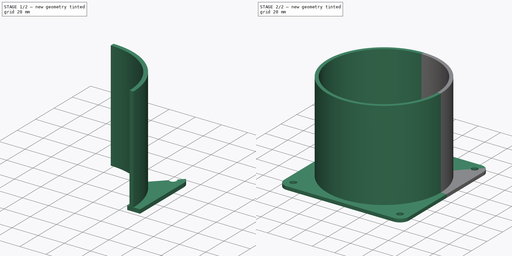
[diagram: build sequence overview — one tinted view per stage of 2, left to right]
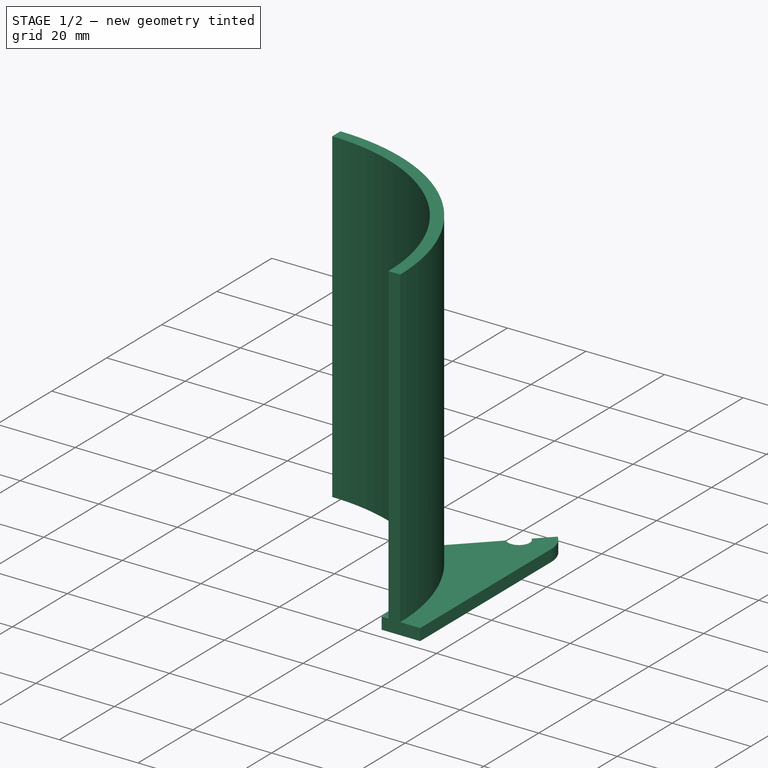
[diagram: stage 1 of 2 — iso view after this stage's code; geometry added in this stage tinted green]
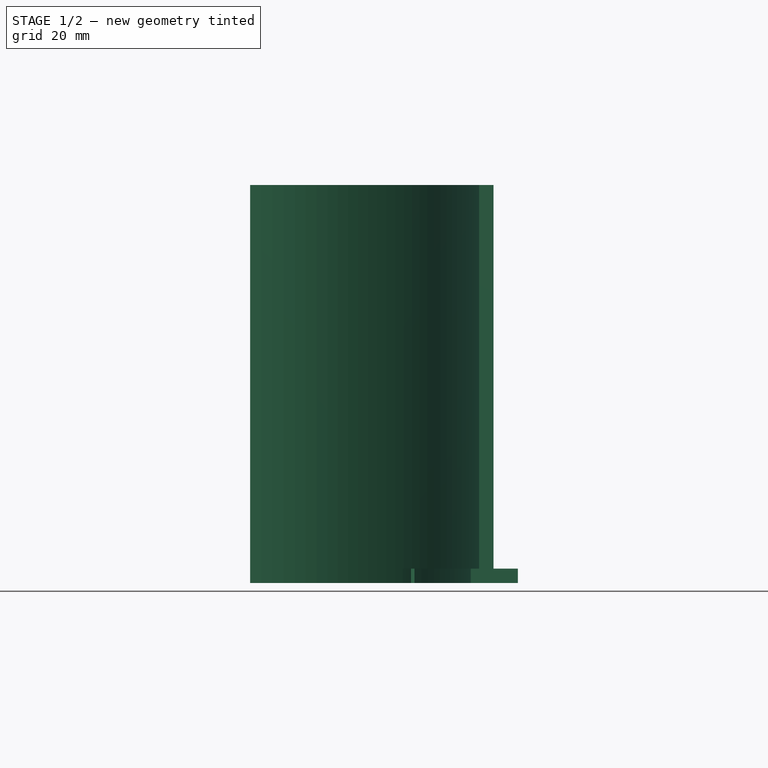
[diagram: stage 1 of 2 — front view after this stage's code; geometry added in this stage tinted green]
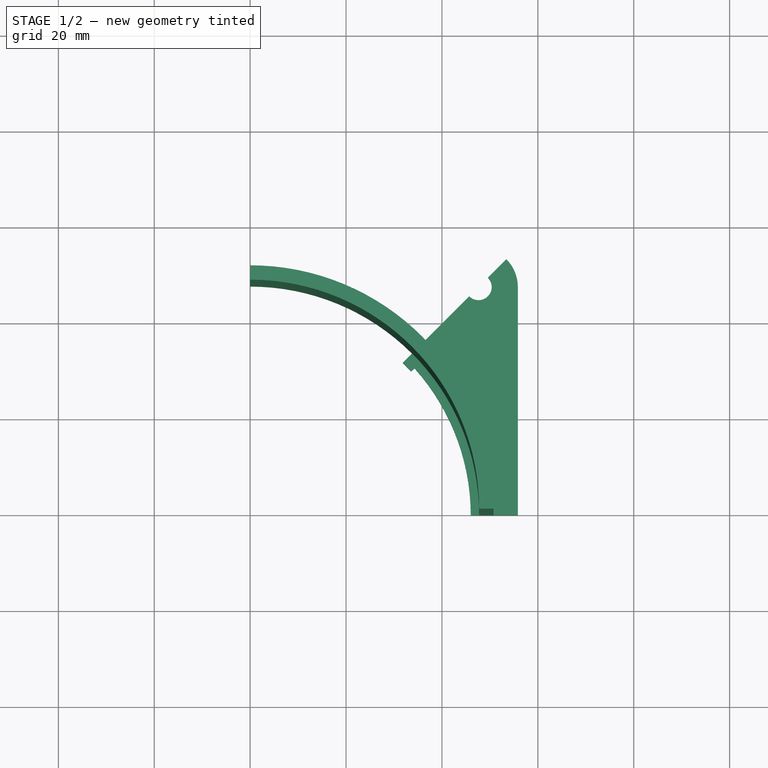
[diagram: stage 1 of 2 — top view after this stage's code; geometry added in this stage tinted green]
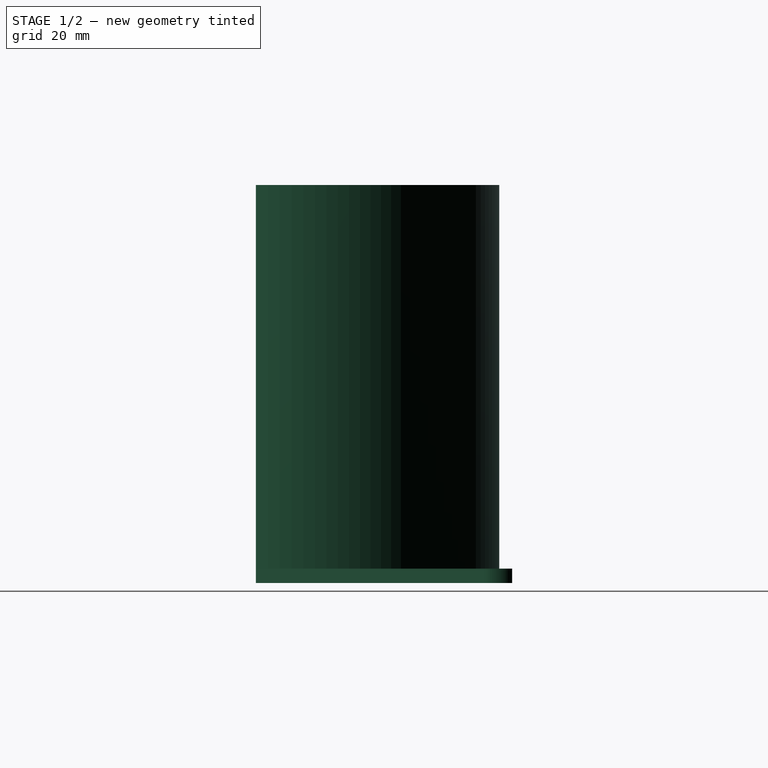
[diagram: stage 1 of 2 — right view after this stage's code; geometry added in this stage tinted green]
FCSTD DOCUMENT  (FreeCAD 0.20R29177 (Git))
Label: Фланец
License: All rights reserved
LicenseURL: http://en.wikipedia.org/wiki/All_rights_reserved
objects: Sketcher::SketchObject×3, PartDesign::Mirrored×3, PartDesign::Revolution×1, PartDesign::Pad×1, PartDesign::Plane×1, PartDesign::MultiTransform×1, PartDesign::Body×1
note: 13 computed .brp shape members not serialized (recipe doc carries the construction recipe); baked Part::Feature solids carry a one-line shape summary decoded from their .brp

FEATURE [Sketcher::SketchObject] Sketch
  FullyConstrained = true
  MapMode = 5
  Placement = pos=(0,0,0) rot=(1,0,0;1.5708rad)
  Support = -> [XZ_Plane]
  sketch-geometry (4):
    g0: LineSegment StartX=47.75 StartY=0 StartZ=0 EndX=50.75 EndY=0 EndZ=0
    g1: LineSegment StartX=50.75 StartY=0 StartZ=0 EndX=50.75 EndY=83 EndZ=0
    g2: LineSegment StartX=50.75 StartY=83 StartZ=0 EndX=47.75 EndY=83 EndZ=0
    g3: LineSegment StartX=47.75 StartY=83 StartZ=0 EndX=47.75 EndY=0 EndZ=0
  constraints (12):
    c: Coincident(g0,g1)
    c: Coincident(g1,g2)
    c: Coincident(g2,g3)
    c: Coincident(g3,g0)
    c: Horizontal(g0)
    c: Horizontal(g2)
    c: Vertical(g1)
    c: Vertical(g3)
    c: PointOnObject(g0,g-1)
    c: Distance(g0,g-1) = 47.75
    c: Distance(g0) = 3
    c: Distance(g3) = 83
FEATURE [PartDesign::Revolution] Revolution
  Angle = 90
  Axis = (0,-2e-16,1)
  Base = (0,0,0)
  Placement = pos=(0,0,0) rot=(1,0,0;1.5708rad)
  Profile = -> Sketch
  ReferenceAxis = -> Sketch [V_Axis]
FEATURE [Sketcher::SketchObject] Sketch001
  FullyConstrained = true
  MapMode = 5
  Support = -> [XY_Plane]
  sketch-geometry (9):
    g0: ArcOfCircle CenterX=0 CenterY=0 CenterZ=0 NormalX=0 NormalY=0 NormalZ=1 AngleXU=0 Radius=46 StartAngle=0 EndAngle=0.729835
    g1: LineSegment StartX=31.8198 StartY=31.8198 StartZ=0 EndX=45.6805 EndY=45.6805 EndZ=0
    g2: ArcOfCircle CenterX=47.625 CenterY=47.625 CenterZ=0 NormalX=0 NormalY=0 NormalZ=1 AngleXU=0 Radius=2.75 StartAngle=3.92699 EndAngle=7.06858
    g3: ArcOfCircle CenterX=47.625 CenterY=47.625 CenterZ=0 NormalX=0 NormalY=0 NormalZ=1 AngleXU=0 Radius=8.2 StartAngle=4.50422e-08 EndAngle=0.785398
    g4: LineSegment StartX=55.825 StartY=47.625 StartZ=0 EndX=55.825 EndY=0 EndZ=0
    g5: LineSegment StartX=46 StartY=0 StartZ=0 EndX=55.825 EndY=0 EndZ=0
    g6: LineSegment StartX=49.5695 StartY=49.5695 StartZ=0 EndX=53.4233 EndY=53.4233 EndZ=0
    g7: ArcOfCircle CenterX=0 CenterY=0 CenterZ=0 NormalX=0 NormalY=0 NormalZ=1 AngleXU=0 Radius=45 StartAngle=0.729835 EndAngle=0.785398
    g8: LineSegment StartX=33.5378 StartY=30.0036 StartZ=0 EndX=34.2831 EndY=30.6704 EndZ=0
  constraints (27):
    c: PointOnObject(g0,g-1)
    c: DistanceX(g2) = 47.625
    c: DistanceY(g2) = 47.625
    c: Coincident(g3,g2)
    c: Diameter(g2) = 5.5
    c: Diameter(g3) = 16.4
    c: Coincident(g4,g3)
    c: PointOnObject(g4,g-1)
    c: Vertical(g4)
    c: Tangent(g4,g3)
    c: Coincident(g5,g0)
    c: Coincident(g5,g4)
    c: Diameter(g0) = 92
    c: PointOnObject(g0,g1)
    c: Tangent(g6,g1)
    c: Angle(g-1,g1) = 0.785398
    c: Coincident(g2,g6)
    c: Coincident(g2,g1)
    c: Coincident(g3,g6)
    c: Coincident(g7,g0)
    c: Coincident(g8,g7)
    c: Coincident(g0,g-1)
    c: Coincident(g1,g7)
    c: Coincident(g0,g8)
    c: PointOnObject(g0,g8)
    c: Distance(g7,g1) = 2.5
    c: Distance(g8) = 1
FEATURE [Sketcher::SketchObject] Sketch002
  AttachmentOffset = pos=(0,0,0) rot=(0,1,0;0.392699rad)
  FullyConstrained = false
  MapMode = 5
  Placement = pos=(0,0,0) rot=(0.962637,0.19148,0.19148;1.60887rad)
  Support = -> [XZ_Plane]
  sketch-geometry (4):
    g0: ArcOfCircle CenterX=0 CenterY=38 CenterZ=0 NormalX=0 NormalY=0 NormalZ=1 AngleXU=0 Radius=15 StartAngle=3.14159 EndAngle=6.28319
    g1: LineSegment StartX=-15 StartY=38 StartZ=0 EndX=-15 EndY=143.504 EndZ=0
    g2: LineSegment StartX=15 StartY=38 StartZ=0 EndX=15 EndY=142.669 EndZ=0
    g3: LineSegment StartX=-15 StartY=143.504 StartZ=0 EndX=15 EndY=142.669 EndZ=0
  constraints (11):
    c: PointOnObject(g0,g-2)
    c: Coincident(g1,g0)
    c: Vertical(g1)
    c: Coincident(g2,g0)
    c: Vertical(g2)
    c: Coincident(g3,g1)
    c: Coincident(g3,g2)
    c: Tangent(g0,g2)
    c: Tangent(g0,g1)
    c: Diameter(g0) = 30
    c: Distance(g0,g-1) = 38
FEATURE [PartDesign::Pad] Pad
  BaseFeature = -> Revolution
  Direction = (0,0,1)
  Length = 3
  Length2 = 100
  Placement = pos=(0,0,0) rot=(1,0,0;1.5708rad)
  Profile = -> Sketch001
  Type = 0
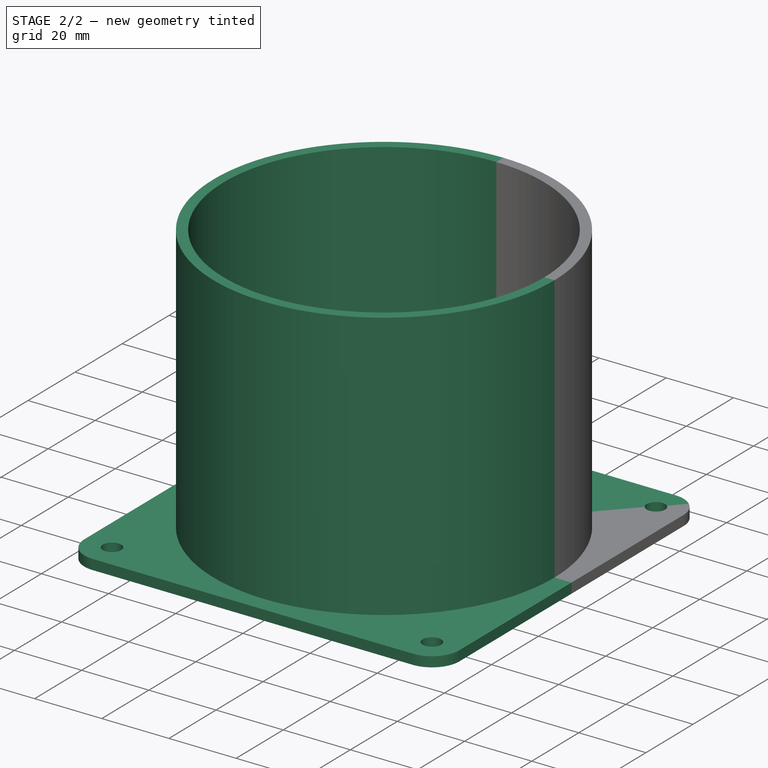
[diagram: stage 2 of 2 — iso view after this stage's code; geometry added in this stage tinted green]
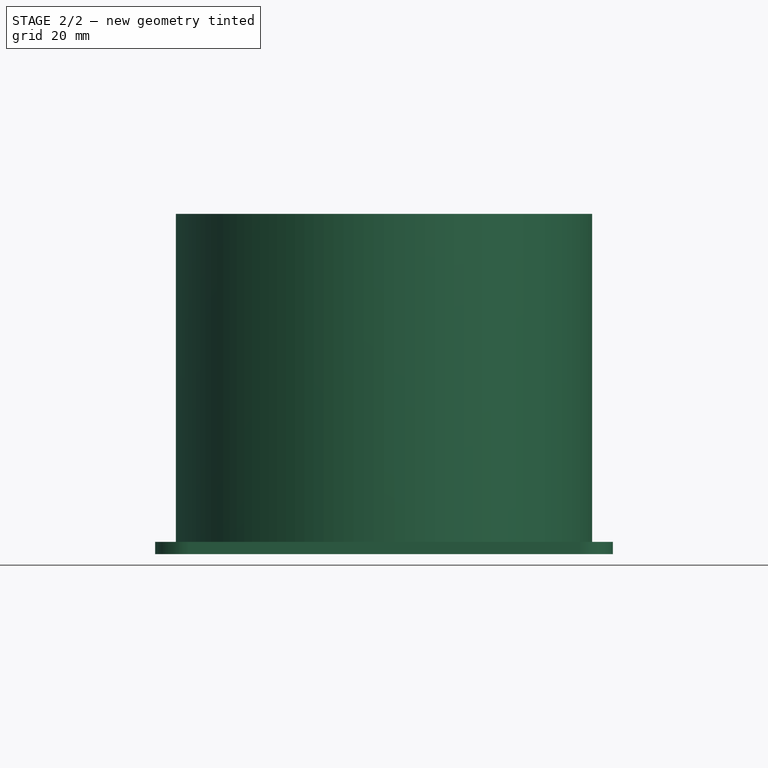
[diagram: stage 2 of 2 — front view after this stage's code; geometry added in this stage tinted green]
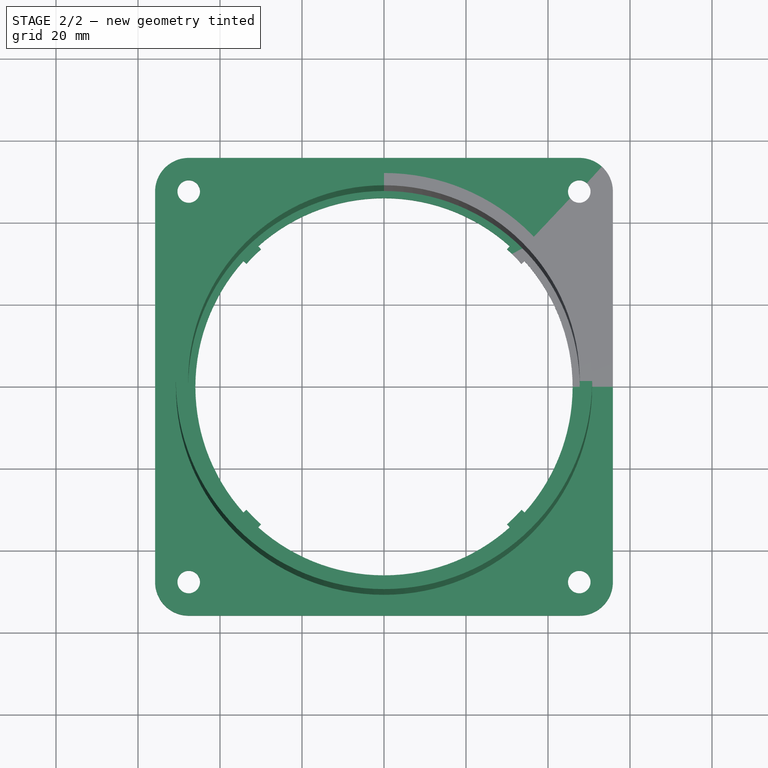
[diagram: stage 2 of 2 — top view after this stage's code; geometry added in this stage tinted green]
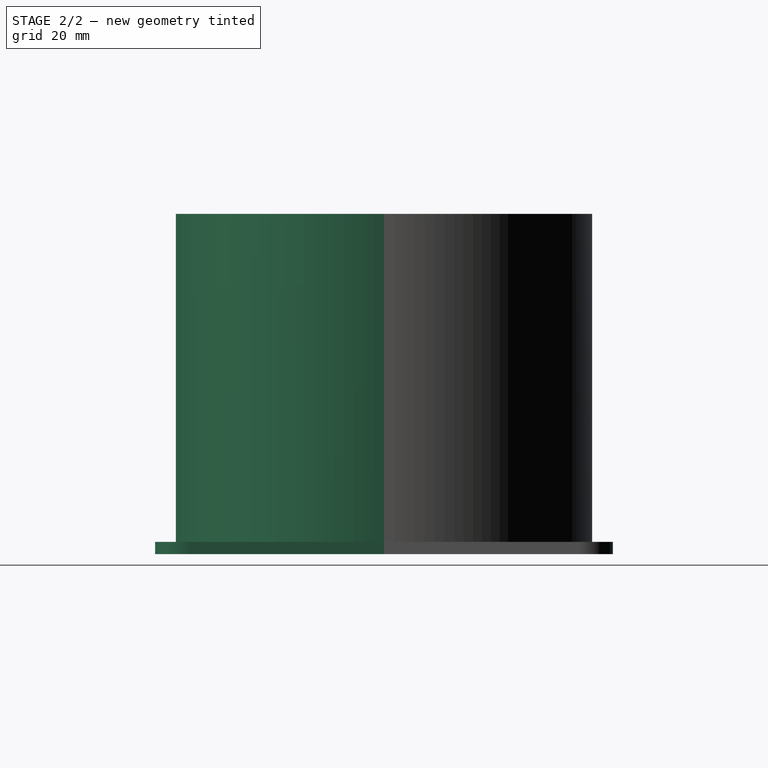
[diagram: stage 2 of 2 — right view after this stage's code; geometry added in this stage tinted green]
FEATURE [PartDesign::Plane] DatumPlane
  AttachmentOffset = pos=(0,0,0) rot=(0,1,0;0.785398rad)
  Length = 190.52
  MapMode = 3
  Placement = pos=(0,0,0) rot=(0.862856,0.357407,0.357407;1.71777rad)
  ResizeMode = 0
  Support = -> [Sketch001]
  Width = 201.127
FEATURE [PartDesign::Mirrored] Mirrored
  MirrorPlane = -> DatumPlane
  Placement = pos=(0,0,0) rot=(1,0,0;1.5708rad)
FEATURE [PartDesign::Mirrored] Mirrored001
  MirrorPlane = -> Sketch001 [V_Axis]
  Placement = pos=(0,0,0) rot=(1,0,0;1.5708rad)
FEATURE [PartDesign::Mirrored] Mirrored002
  MirrorPlane = -> Sketch001 [H_Axis]
  Placement = pos=(0,0,0) rot=(1,0,0;1.5708rad)
FEATURE [PartDesign::MultiTransform] MultiTransform
  BaseFeature = -> Pad
  Originals = -> [Pad,Revolution]
  Placement = pos=(0,0,0) rot=(1,0,0;1.5708rad)
  Transformations = -> [Mirrored,Mirrored001,Mirrored002]
FEATURE [PartDesign::Body] Body
  Group = -> [Sketch,Revolution,Sketch001,Pad,Sketch002,DatumPlane,MultiTransform,Mirrored,Mirrored001,Mirrored002]
  Origin = -> Origin
  Tip = -> MultiTransform
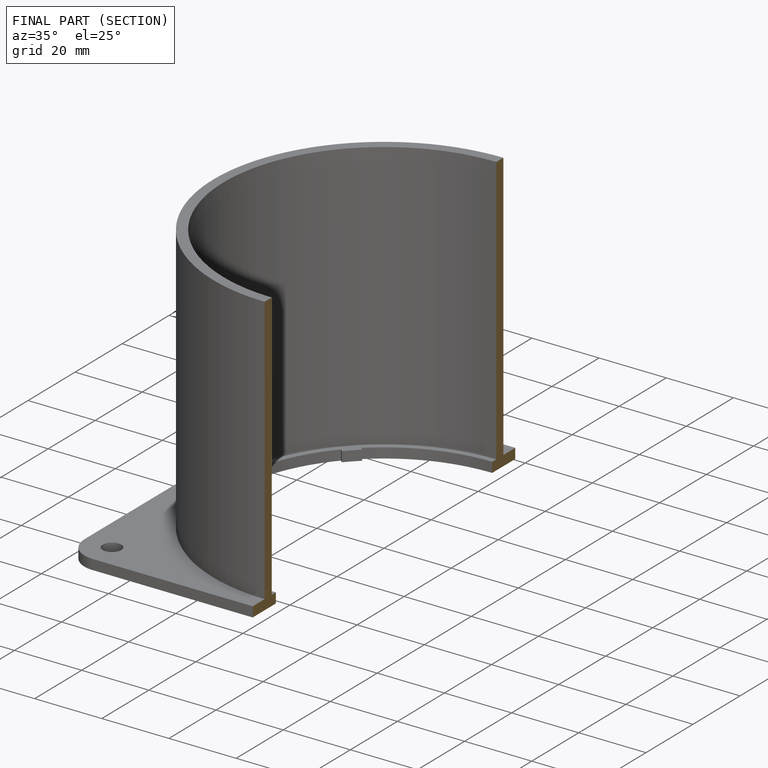
[diagram: finished part — half-section view (interior)]
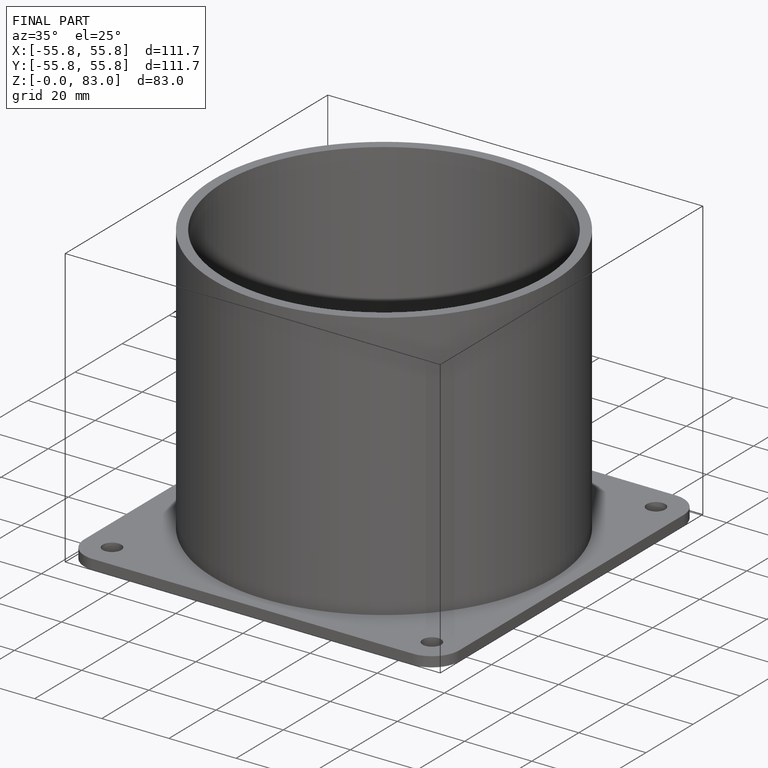
[diagram: finished part — iso view with bounding-box wireframe]
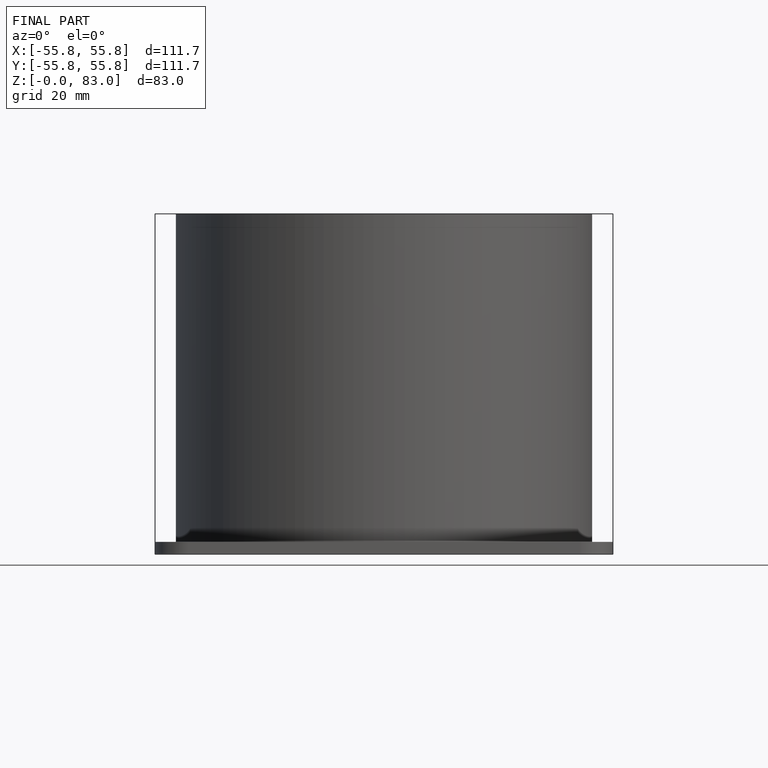
[diagram: finished part — front view with bounding-box wireframe]
